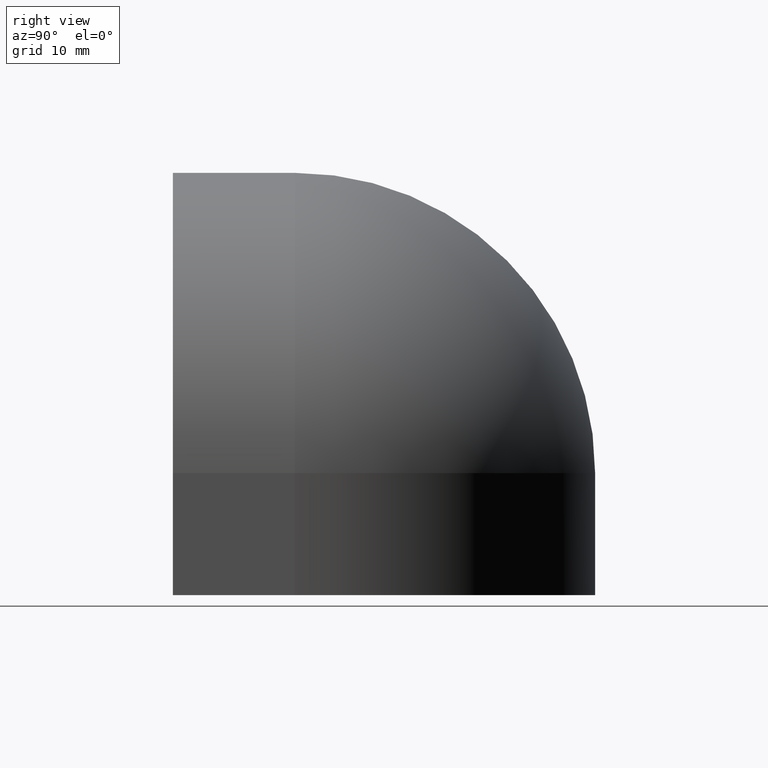
[diagram: clean part render]
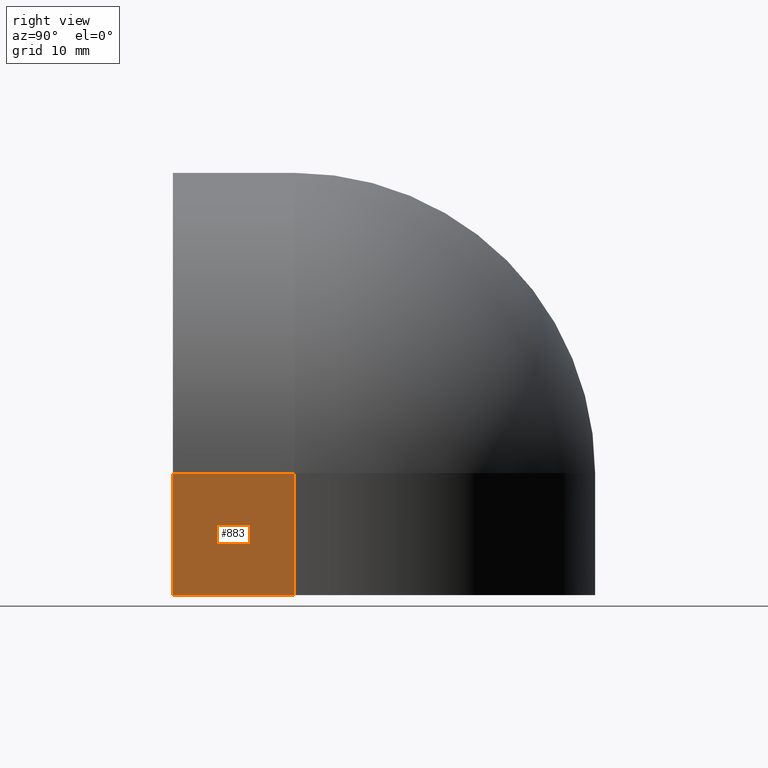
[diagram: same view with one face highlighted and labeled with its STEP entity id]
A machine part, right view. The second image highlights one B-rep face of the part: STEP entity #883.
In plain terms, the highlighted planar face has unit normal (1, 0, 0).
Its self-contained STEP definition (entity closure, byte-faithful):
#19=PLANE($,#964);
#85=LINE($,#1369,#184);
#86=LINE($,#1373,#185);
#87=LINE($,#1375,#186);
#88=LINE($,#1376,#187);
#184=VECTOR($,#1092,13.0000000000001);
#185=VECTOR($,#1097,12.9999999999998);
#186=VECTOR($,#1098,13.);
#187=VECTOR($,#1099,12.9999999999998);
#276=FACE_OUTER_BOUND($,#333,.T.);
#333=EDGE_LOOP($,(#661,#662,#663,#664));
#443=VERTEX_POINT($,#1366);
#444=VERTEX_POINT($,#1368);
#445=VERTEX_POINT($,#1372);
#446=VERTEX_POINT($,#1374);
#527=EDGE_CURVE($,#444,#443,#85,.T.);
#529=EDGE_CURVE($,#445,#443,#86,.T.);
#530=EDGE_CURVE($,#446,#445,#87,.T.);
#531=EDGE_CURVE($,#446,#444,#88,.T.);
#661=ORIENTED_EDGE($,*,*,#529,.F.);
#662=ORIENTED_EDGE($,*,*,#530,.F.);
#663=ORIENTED_EDGE($,*,*,#531,.T.);
#664=ORIENTED_EDGE($,*,*,#527,.T.);
#883=ADVANCED_FACE($,(#276),#19,.T.);
#964=AXIS2_PLACEMENT_3D($,#1371,#1095,#1096);
#1092=DIRECTION($,(0.,0.,1.));
#1095=DIRECTION('center_axis',(1.,0.,0.));
#1096=DIRECTION('ref_axis',(0.,0.,-1.));
#1097=DIRECTION($,(0.,1.,0.));
#1098=DIRECTION($,(0.,0.,1.));
#1099=DIRECTION($,(0.,1.,0.));
#1366=CARTESIAN_POINT('',(45.0000000000001,12.9999999999998,9.71445146547012E-014));
#1368=CARTESIAN_POINT('',(45.0000000000001,12.9999999999998,-13.));
#1369=CARTESIAN_POINT($,(45.0000000000001,12.9999999999998,-13.));
#1371=CARTESIAN_POINT('Origin',(45.0000000000001,0.,-13.));
#1372=CARTESIAN_POINT('',(45.0000000000001,0.,0.));
#1373=CARTESIAN_POINT($,(45.0000000000001,0.,0.));
#1374=CARTESIAN_POINT('',(45.0000000000001,0.,-13.));
#1375=CARTESIAN_POINT($,(45.0000000000001,0.,-13.));
#1376=CARTESIAN_POINT($,(45.0000000000001,0.,-13.));